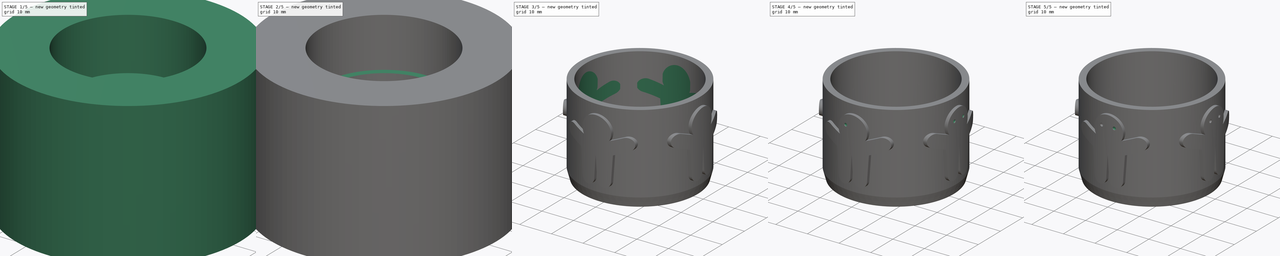
[diagram: build sequence overview — one tinted view per stage of 5, left to right]
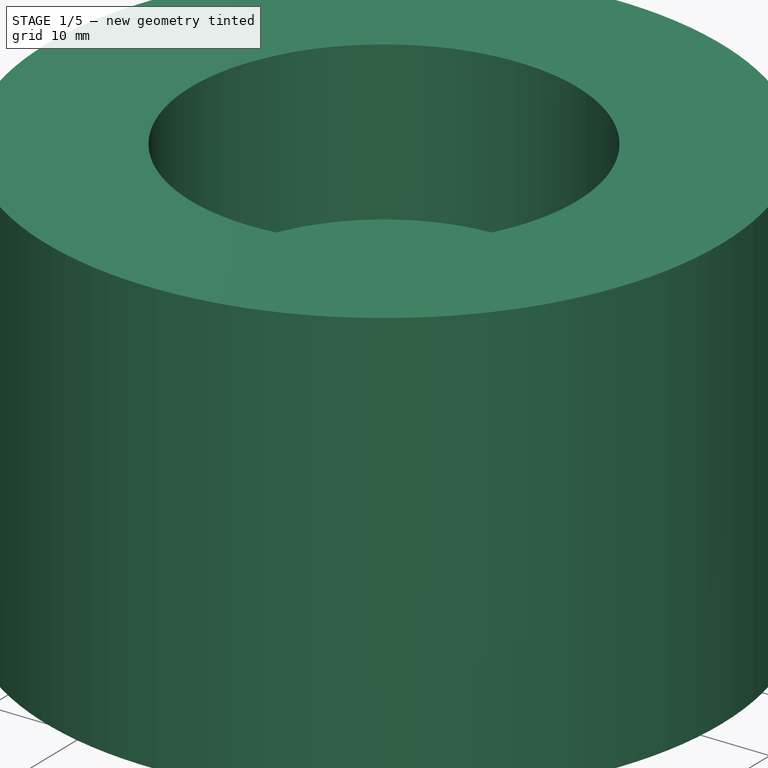
[diagram: stage 1 of 5 — iso view after this stage's code; geometry added in this stage tinted green]
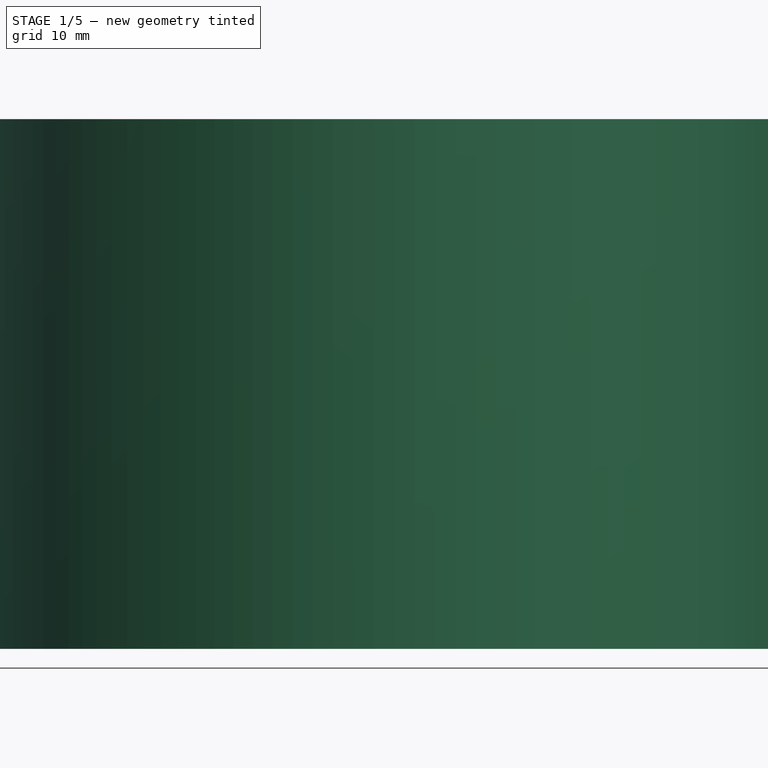
[diagram: stage 1 of 5 — front view after this stage's code; geometry added in this stage tinted green]
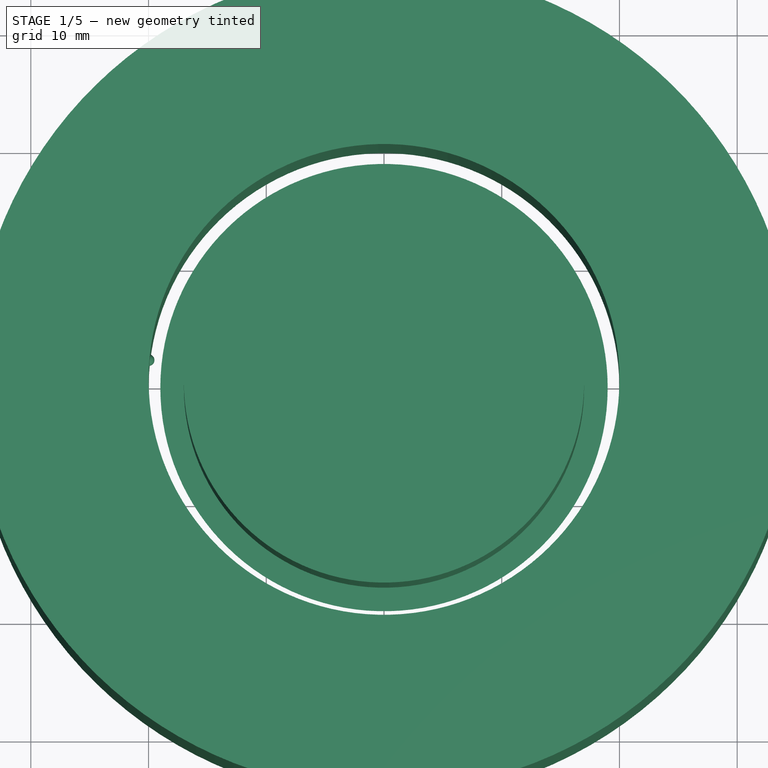
[diagram: stage 1 of 5 — top view after this stage's code; geometry added in this stage tinted green]
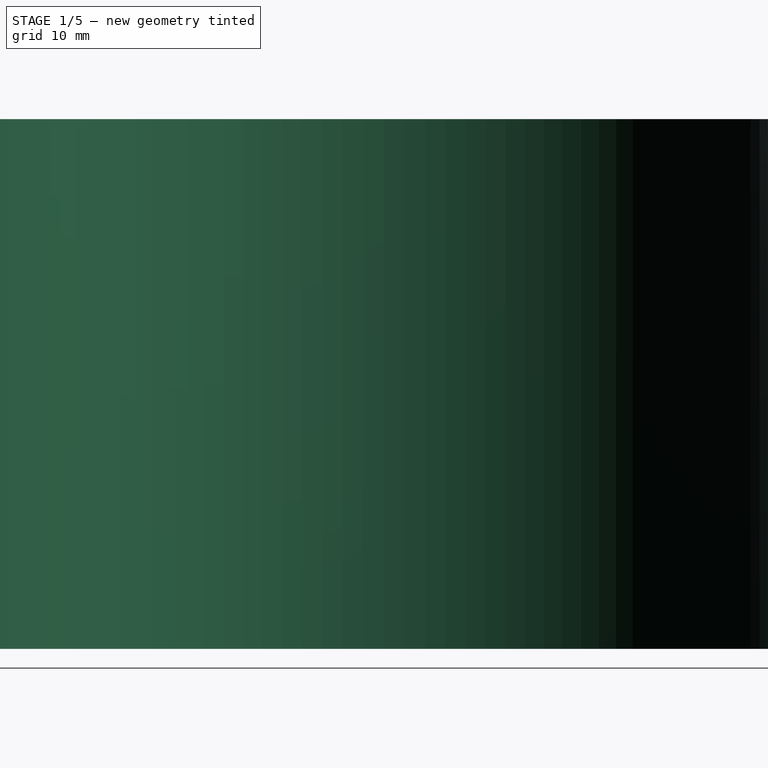
[diagram: stage 1 of 5 — right view after this stage's code; geometry added in this stage tinted green]
FCSTD DOCUMENT  (FreeCAD 0.17R13522 (Git))
Label: cortador_17_19_x25_plus_3
License: CreativeCommons Attribution-ShareAlike
LicenseURL: http://creativecommons.org/licenses/by-sa/4.0/
objects: Part::Cut×12, Part::Sphere×8, Part::Cylinder×5, Part::MultiFuse×5, Part::Feature×4, Sketcher::SketchObject×1, PartDesign::Revolution×1, PartDesign::Body×1
note: 38 computed .brp shape members not serialized (recipe doc carries the construction recipe); baked Part::Feature solids carry a one-line shape summary decoded from their .brp

FEATURE [Part::Cylinder] Cylinder001
  Angle = 360
  AttacherType = Attacher::AttachEngine3D
  Height = 25
  Radius = 17
FEATURE [Part::Cylinder] Cylinder003
  Angle = 360
  AttacherType = Attacher::AttachEngine3D
  Height = 45
  Placement = pos=(0,0,-5) rot=(0,0,1;0rad)
  Radius = 35
FEATURE [Part::Cylinder] Cylinder004
  Angle = 360
  AttacherType = Attacher::AttachEngine3D
  Height = 45
  Placement = pos=(0,0,-5) rot=(0,0,1;0rad)
  Radius = 20
FEATURE [Part::Cut] Cut002
  Base = -> Cylinder003
  Tool = -> Cylinder004
FEATURE [Sketcher::SketchObject] Sketch
  MapMode = 5
  Placement = pos=(0,0,0) rot=(1,0,0;1.5708rad)
  Support = -> [XZ_Plane]
  sketch-geometry (4):
    g0: LineSegment StartX=17 StartY=0 StartZ=0 EndX=19 EndY=0 EndZ=0
    g1: LineSegment StartX=19 StartY=0 StartZ=0 EndX=18.2 EndY=-3 EndZ=0
    g2: LineSegment StartX=18.2 StartY=-3 StartZ=0 EndX=17.8 EndY=-3 EndZ=0
    g3: LineSegment StartX=17.8 StartY=-3 StartZ=0 EndX=17 EndY=0 EndZ=0
  constraints (12):
    c: PointOnObject(g0,g-1)
    c: Horizontal(g0)
    c: Coincident(g0,g1)
    c: Coincident(g1,g2)
    c: Coincident(g2,g3)
    c: Coincident(g3,g0)
    c: DistanceX(g0,g0) = 2
    c: Horizontal(g2)
    c: DistanceX(g2,g2) = 0.4
    c: DistanceX(g1,g0) = 0.8
    c: DistanceX(g-1,g0) = 17
    c: DistanceY(g1,g0) = 3
FEATURE [PartDesign::Revolution] Revolution
  Angle = 360
  Axis = (0,0,1)
  Base = (0,0,0)
  Placement = pos=(0,0,0) rot=(1,0,0;1.5708rad)
  Profile = -> Sketch
  ReferenceAxis = -> Sketch [V_Axis]
  Reversed = true
FEATURE [Part::Sphere] Sphere  label="ojo1_1"
  Angle1 = -90
  Angle2 = 90
  Angle3 = 360
  AttacherType = Attacher::AttachEngine3D
  Placement = pos=(-20,2,19) rot=(0,0,1;0rad)
  Radius = 0.5
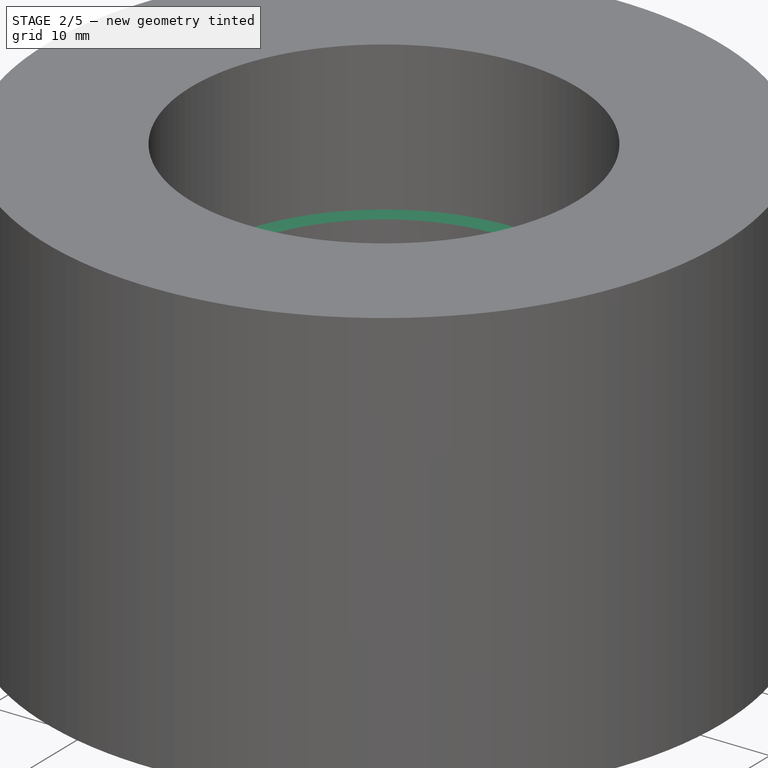
[diagram: stage 2 of 5 — iso view after this stage's code; geometry added in this stage tinted green]
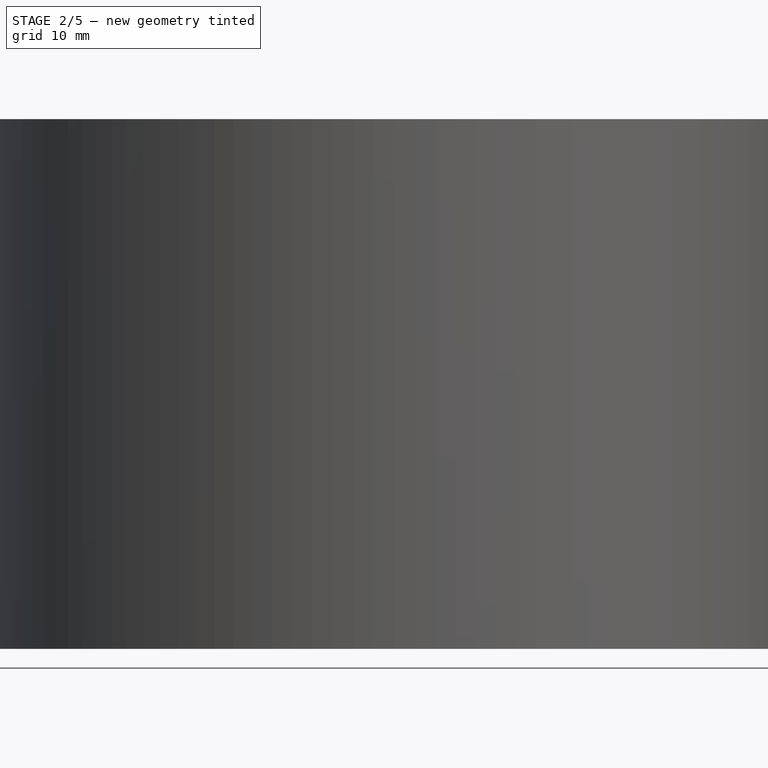
[diagram: stage 2 of 5 — front view after this stage's code; geometry added in this stage tinted green]
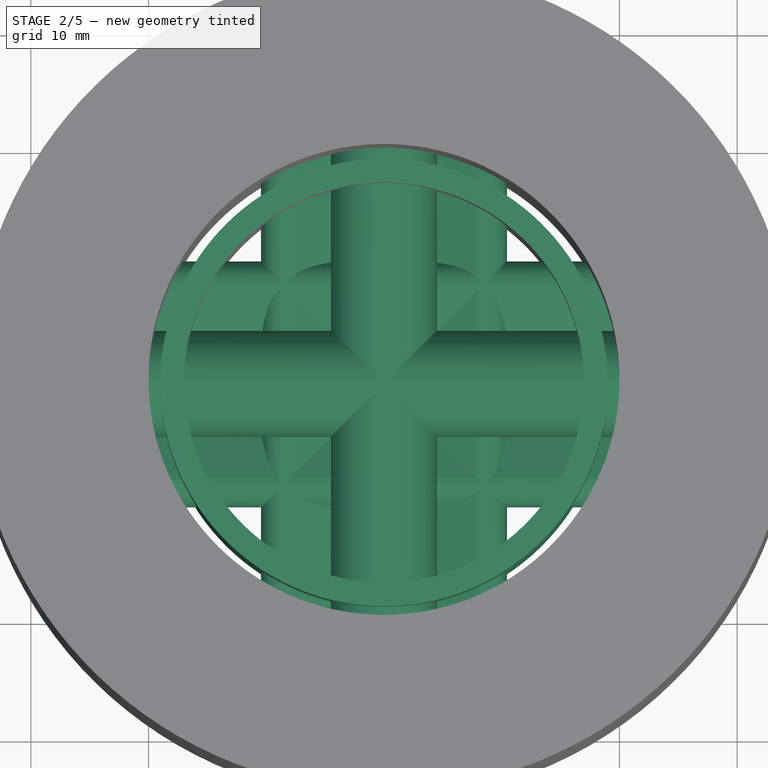
[diagram: stage 2 of 5 — top view after this stage's code; geometry added in this stage tinted green]
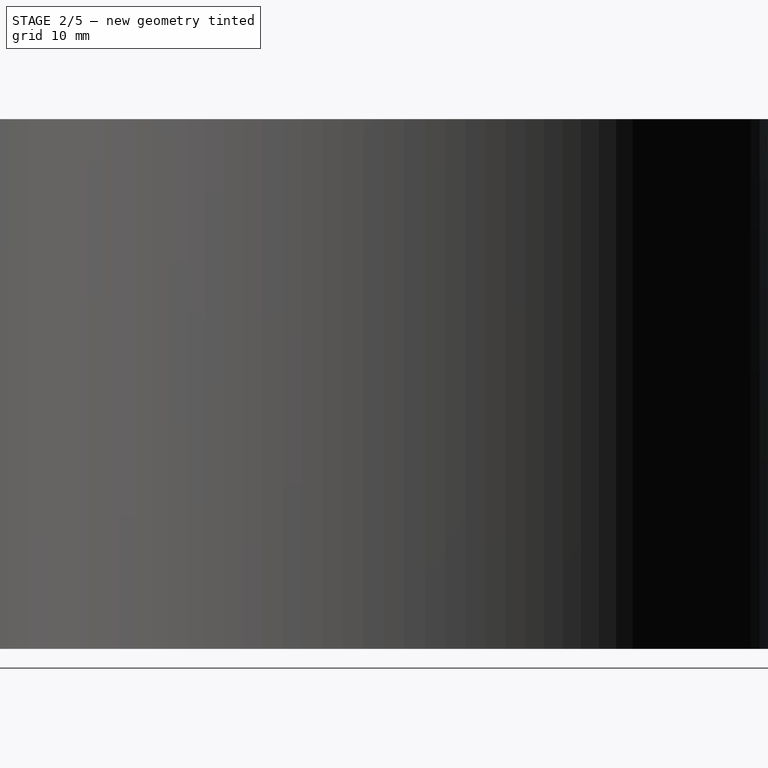
[diagram: stage 2 of 5 — right view after this stage's code; geometry added in this stage tinted green]
FEATURE [Part::Cylinder] Cylinder
  Angle = 360
  AttacherType = Attacher::AttachEngine3D
  Height = 25
  Radius = 19
FEATURE [Part::Cut] Cut
  Base = -> Cylinder
  Tool = -> Cylinder001
FEATURE [Part::MultiFuse] Fusion
  Shapes = -> [Extrude003,Cut]
FEATURE [Part::MultiFuse] Fusion001
  Shapes = -> [Fusion,Extrude004]
FEATURE [Part::MultiFuse] Fusion002
  Shapes = -> [Fusion001,Extrude001]
FEATURE [Part::MultiFuse] Fusion003
  Shapes = -> [Fusion002,Extrude002]
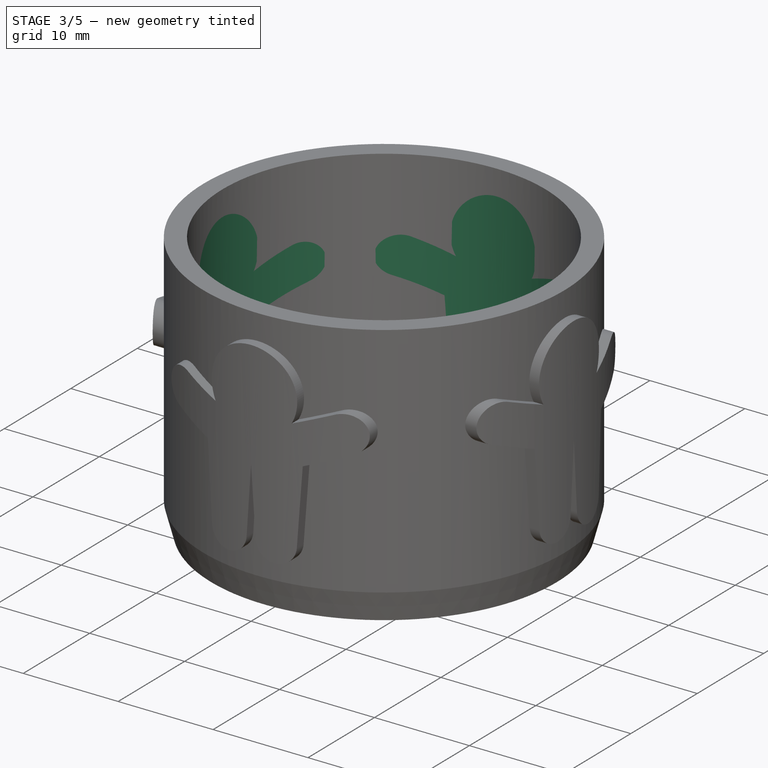
[diagram: stage 3 of 5 — iso view after this stage's code; geometry added in this stage tinted green]
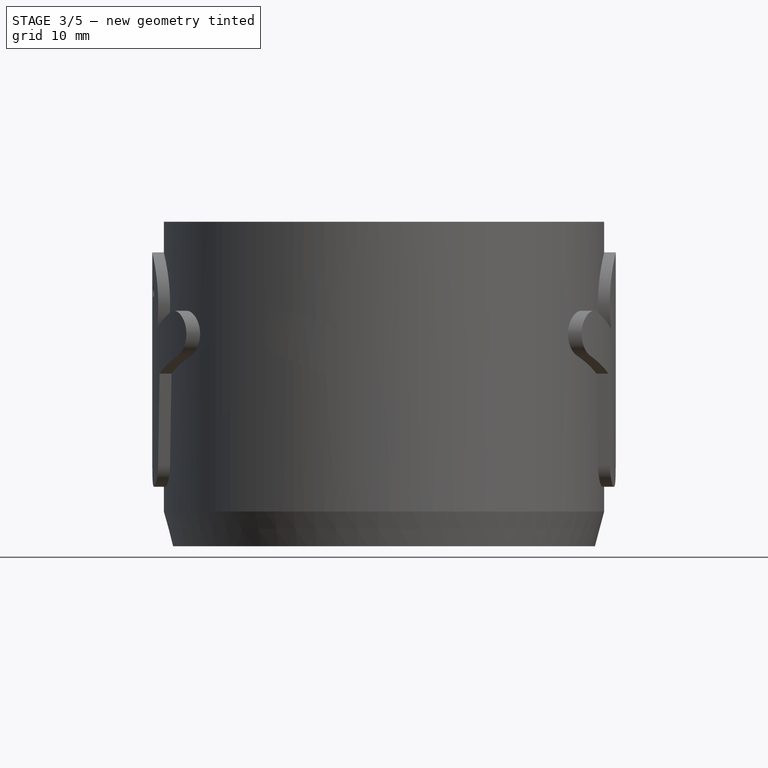
[diagram: stage 3 of 5 — front view after this stage's code; geometry added in this stage tinted green]
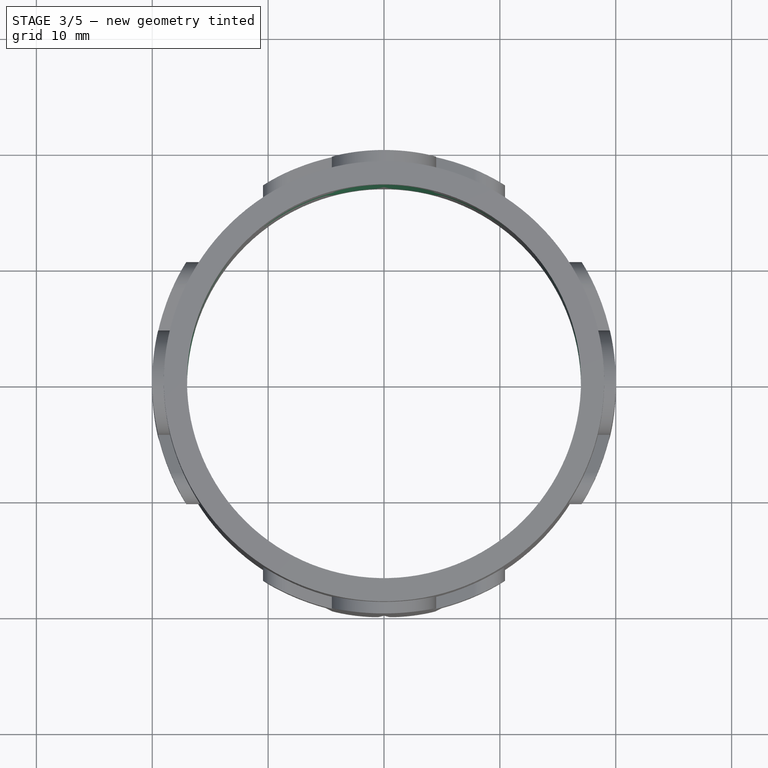
[diagram: stage 3 of 5 — top view after this stage's code; geometry added in this stage tinted green]
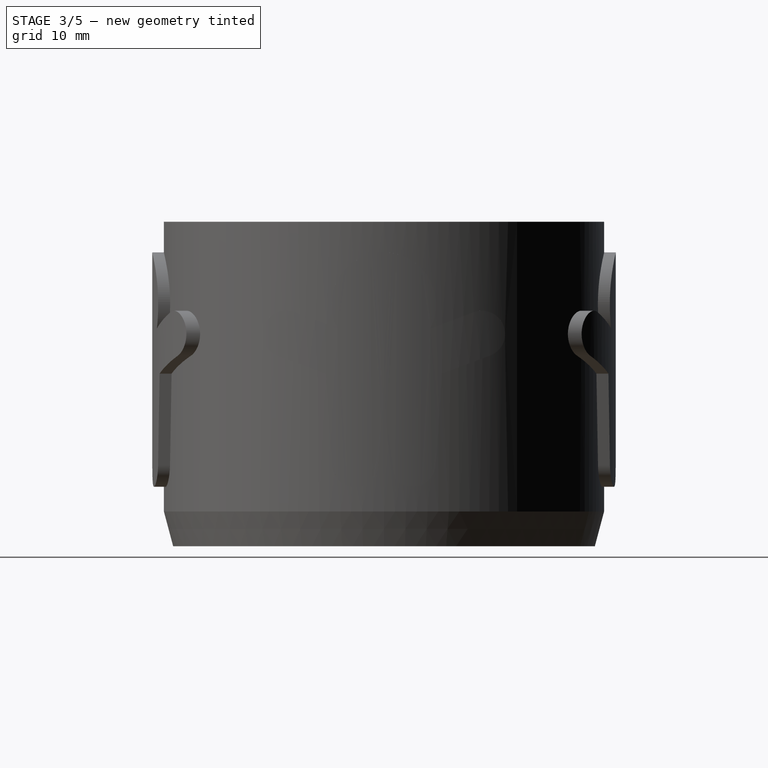
[diagram: stage 3 of 5 — right view after this stage's code; geometry added in this stage tinted green]
FEATURE [Part::Feature] Extrude001
  Placement = pos=(0,0,1) rot=(0,0,1;0rad)
  shape: bbox 20.89 x 30 x 20.22 mm, 15 faces (baked)
FEATURE [Part::Feature] Extrude002
  Placement = pos=(0,-27,1) rot=(0,0,1;0rad)
  shape: bbox 20.89 x 30 x 20.22 mm, 15 faces (baked)
FEATURE [Part::Feature] Extrude003
  Placement = pos=(0,0,1) rot=(0,0,1;1.5708rad)
  shape: bbox 30 x 20.89 x 20.22 mm, 15 faces (baked)
FEATURE [Part::Feature] Extrude004
  Placement = pos=(28,0,1) rot=(0,0,1;1.5708rad)
  shape: bbox 30 x 20.89 x 20.22 mm, 15 faces (baked)
FEATURE [Part::Cylinder] Cylinder002
  Angle = 360
  AttacherType = Attacher::AttachEngine3D
  Height = 50
  Placement = pos=(0,0,-8) rot=(0,0,1;0rad)
  Radius = 17
FEATURE [Part::Cut] Cut001  label="cilindors_con_munies"
  Base = -> Fusion003
  Tool = -> Cylinder002
FEATURE [Part::Cut] Cut003  label="cilindros_con_munies_sin_ojos"
  Base = -> Cut001
  Tool = -> Cut002
FEATURE [PartDesign::Body] Body
  Group = -> [Sketch,Revolution]
  Origin = -> Origin
  Tip = -> Revolution
FEATURE [Part::MultiFuse] Fusion004  label="cilindro_con_munies_y_cortante_sin_ojos"
  Shapes = -> [Cut003,Body]
FEATURE [Part::Sphere] Sphere001  label="ojo1_2"
  Angle1 = -90
  Angle2 = 90
  Angle3 = 360
  AttacherType = Attacher::AttachEngine3D
  Placement = pos=(-20,-2,19) rot=(0,0,1;0rad)
  Radius = 0.5
FEATURE [Part::Cut] Cut004
  Base = -> Fusion004
  Tool = -> Sphere
FEATURE [Part::Cut] Cut005
  Base = -> Cut004
  Tool = -> Sphere001
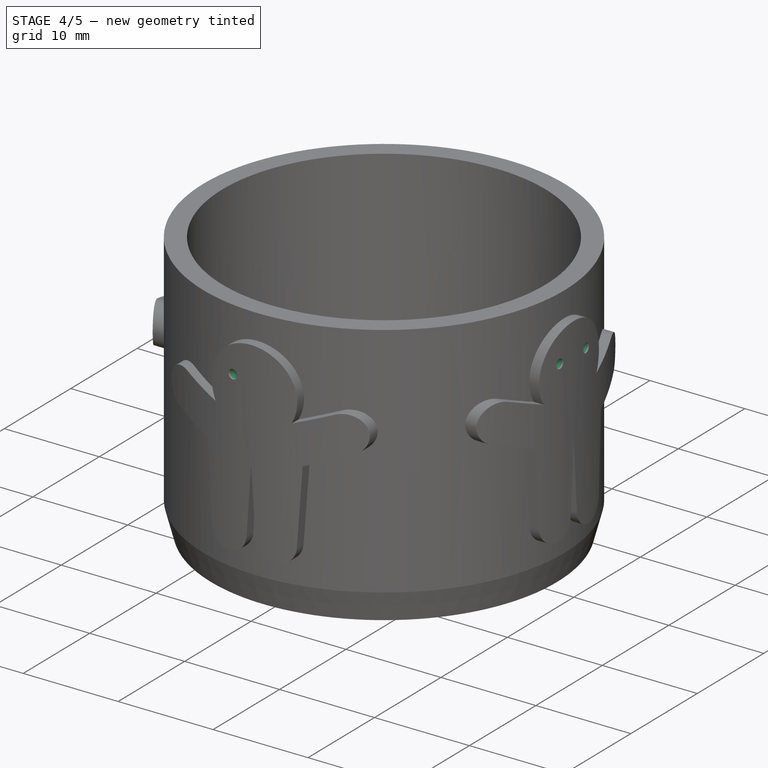
[diagram: stage 4 of 5 — iso view after this stage's code; geometry added in this stage tinted green]
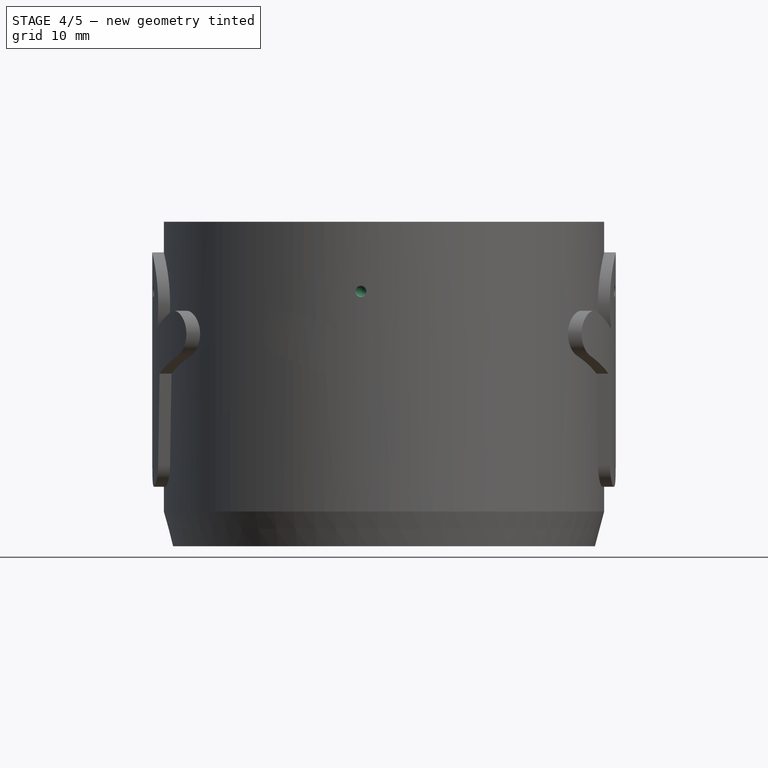
[diagram: stage 4 of 5 — front view after this stage's code; geometry added in this stage tinted green]
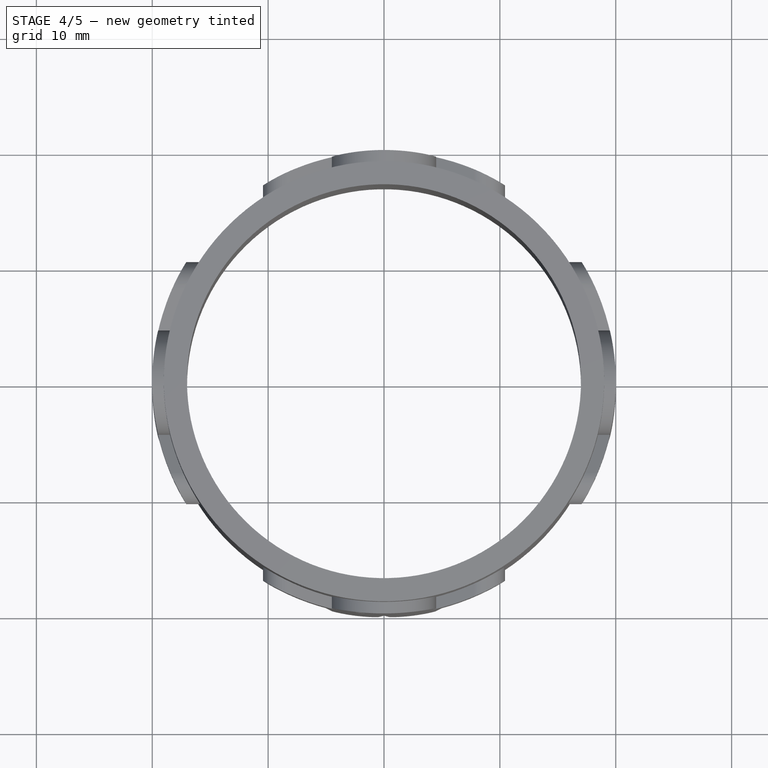
[diagram: stage 4 of 5 — top view after this stage's code; geometry added in this stage tinted green]
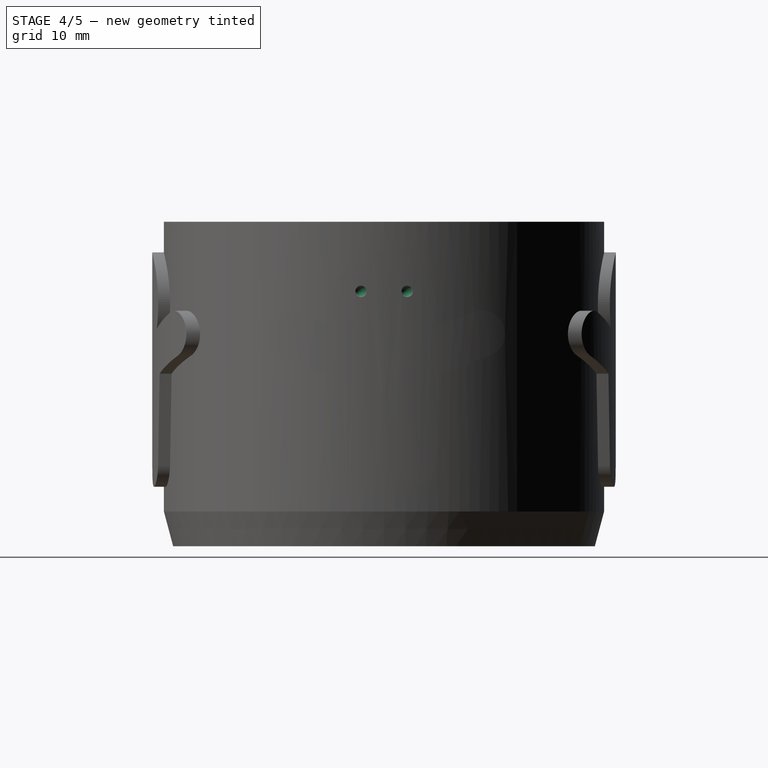
[diagram: stage 4 of 5 — right view after this stage's code; geometry added in this stage tinted green]
FEATURE [Part::Sphere] Sphere002  label="ojo2_1"
  Angle1 = -90
  Angle2 = 90
  Angle3 = 360
  AttacherType = Attacher::AttachEngine3D
  Placement = pos=(20,-2,19) rot=(0,0,1;0rad)
  Radius = 0.5
FEATURE [Part::Sphere] Sphere003  label="ojo2_2"
  Angle1 = -90
  Angle2 = 90
  Angle3 = 360
  AttacherType = Attacher::AttachEngine3D
  Placement = pos=(20,2,19) rot=(0,0,1;0rad)
  Radius = 0.5
FEATURE [Part::Sphere] Sphere004  label="ojo3_1"
  Angle1 = -90
  Angle2 = 90
  Angle3 = 360
  AttacherType = Attacher::AttachEngine3D
  Placement = pos=(-2,-20,19) rot=(0,0,1;0rad)
  Radius = 0.5
FEATURE [Part::Cut] Cut006
  Base = -> Cut005
  Tool = -> Sphere002
FEATURE [Part::Cut] Cut007
  Base = -> Cut006
  Tool = -> Sphere003
FEATURE [Part::Cut] Cut008
  Base = -> Cut007
  Tool = -> Sphere004
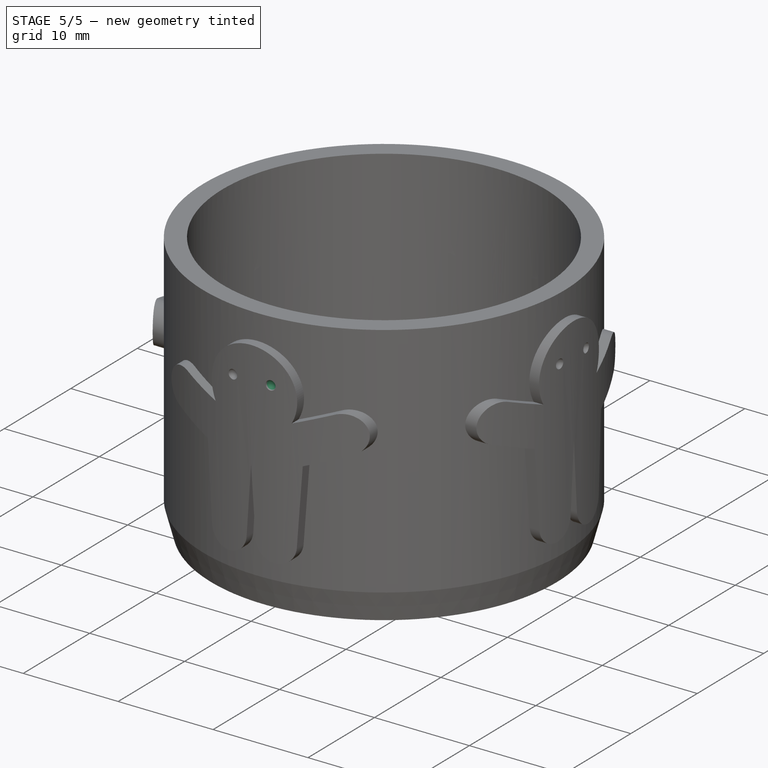
[diagram: stage 5 of 5 — iso view after this stage's code; geometry added in this stage tinted green]
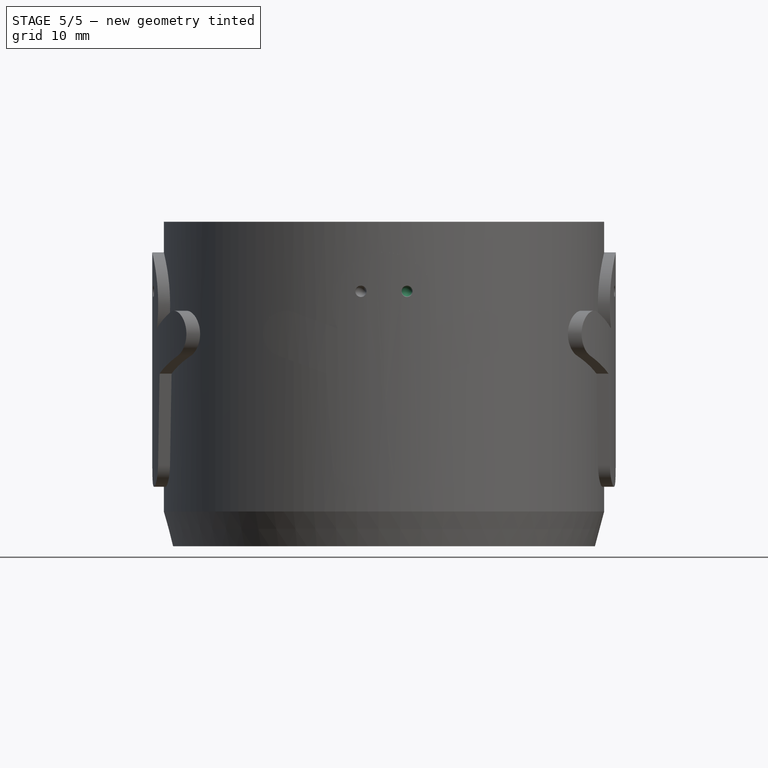
[diagram: stage 5 of 5 — front view after this stage's code; geometry added in this stage tinted green]
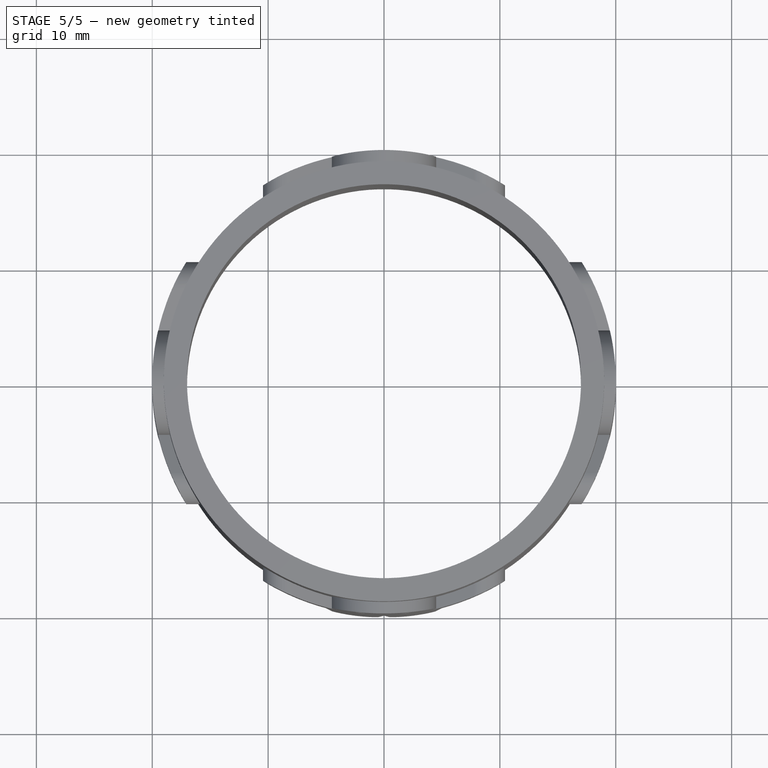
[diagram: stage 5 of 5 — top view after this stage's code; geometry added in this stage tinted green]
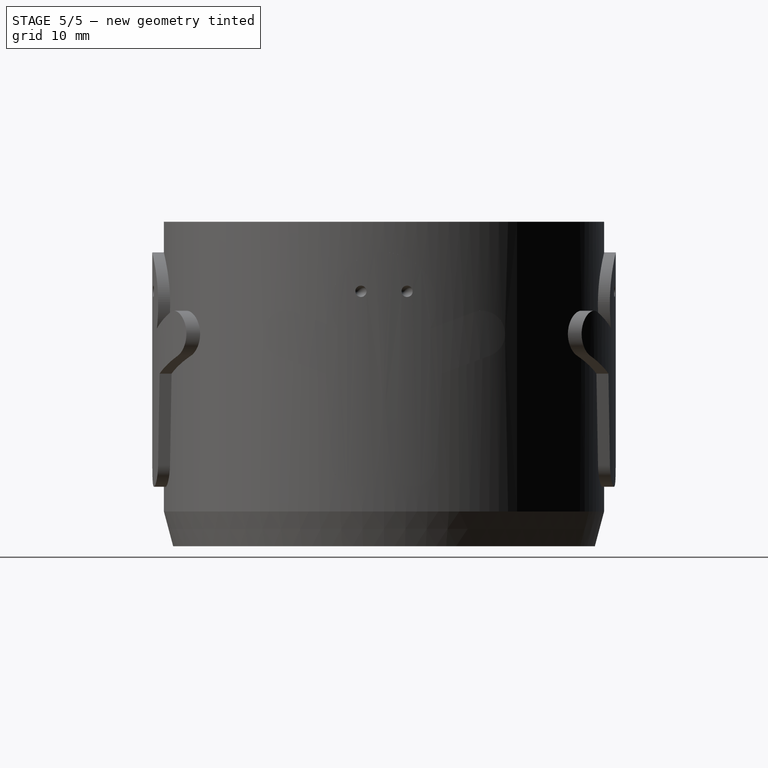
[diagram: stage 5 of 5 — right view after this stage's code; geometry added in this stage tinted green]
FEATURE [Part::Sphere] Sphere005  label="ojo3_2"
  Angle1 = -90
  Angle2 = 90
  Angle3 = 360
  AttacherType = Attacher::AttachEngine3D
  Placement = pos=(2,-20,19) rot=(0,0,1;0rad)
  Radius = 0.5
FEATURE [Part::Sphere] Sphere006  label="ojo4_1"
  Angle1 = -90
  Angle2 = 90
  Angle3 = 360
  AttacherType = Attacher::AttachEngine3D
  Placement = pos=(-2,20,19) rot=(0,0,1;0rad)
  Radius = 0.5
FEATURE [Part::Sphere] Sphere007  label="ojo4_2"
  Angle1 = -90
  Angle2 = 90
  Angle3 = 360
  AttacherType = Attacher::AttachEngine3D
  Placement = pos=(2,20,19) rot=(0,0,1;0rad)
  Radius = 0.5
FEATURE [Part::Cut] Cut009
  Base = -> Cut008
  Tool = -> Sphere005
FEATURE [Part::Cut] Cut010
  Base = -> Cut009
  Tool = -> Sphere006
FEATURE [Part::Cut] Cut011  label="cortador_19_17_x3_con_munies"
  Base = -> Cut010
  Tool = -> Sphere007
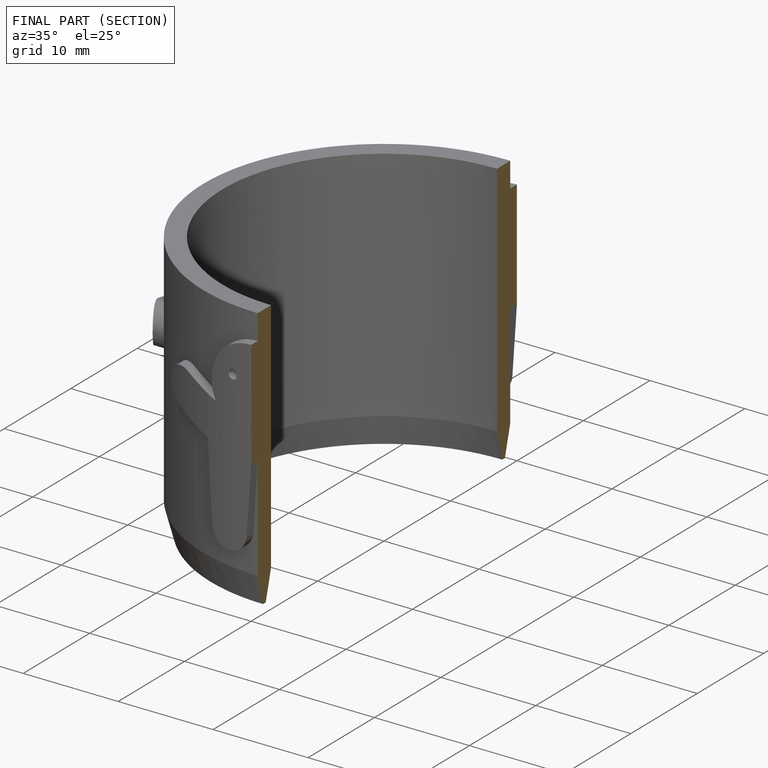
[diagram: finished part — half-section view (interior)]
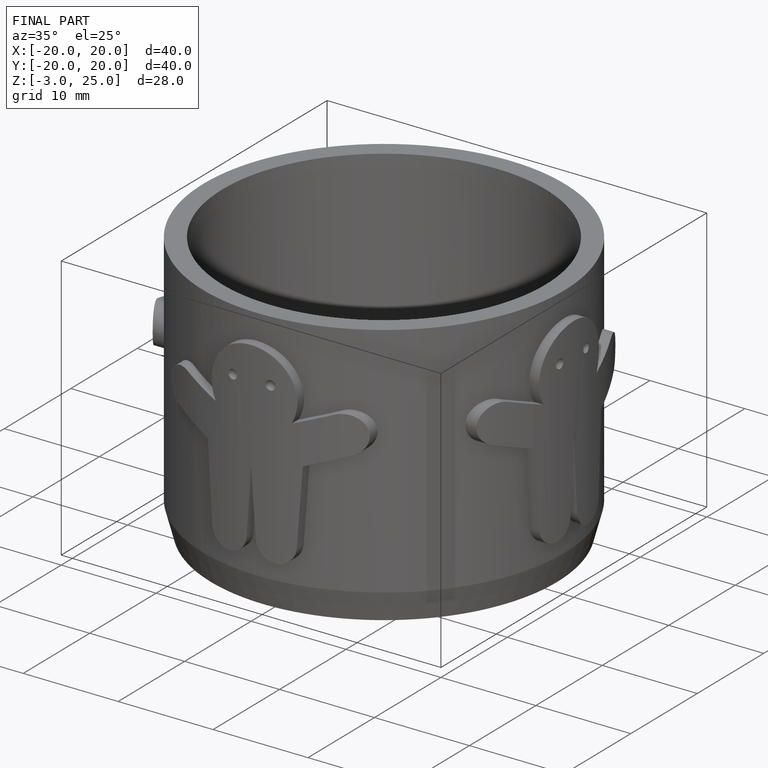
[diagram: finished part — iso view with bounding-box wireframe]
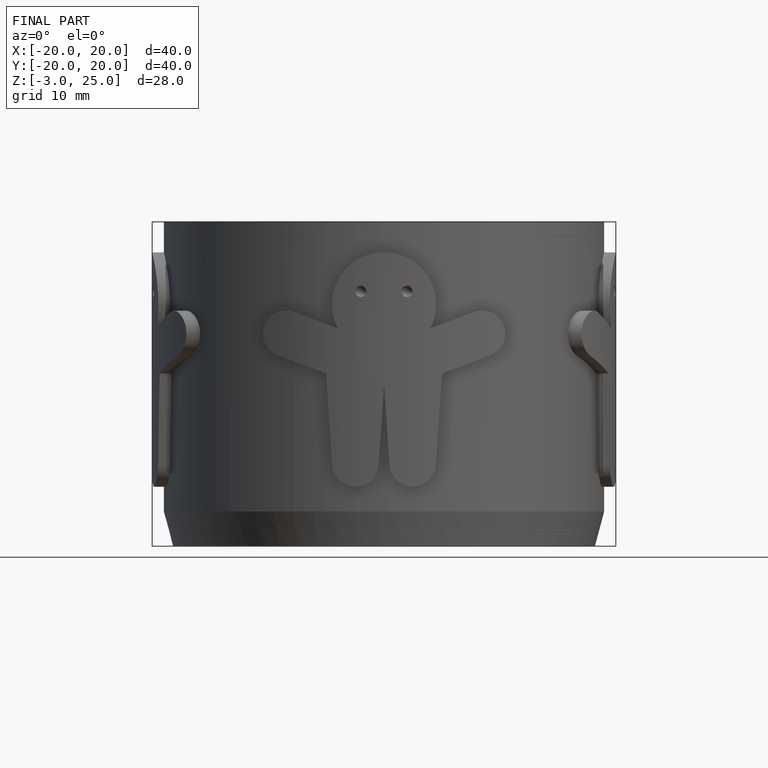
[diagram: finished part — front view with bounding-box wireframe]
